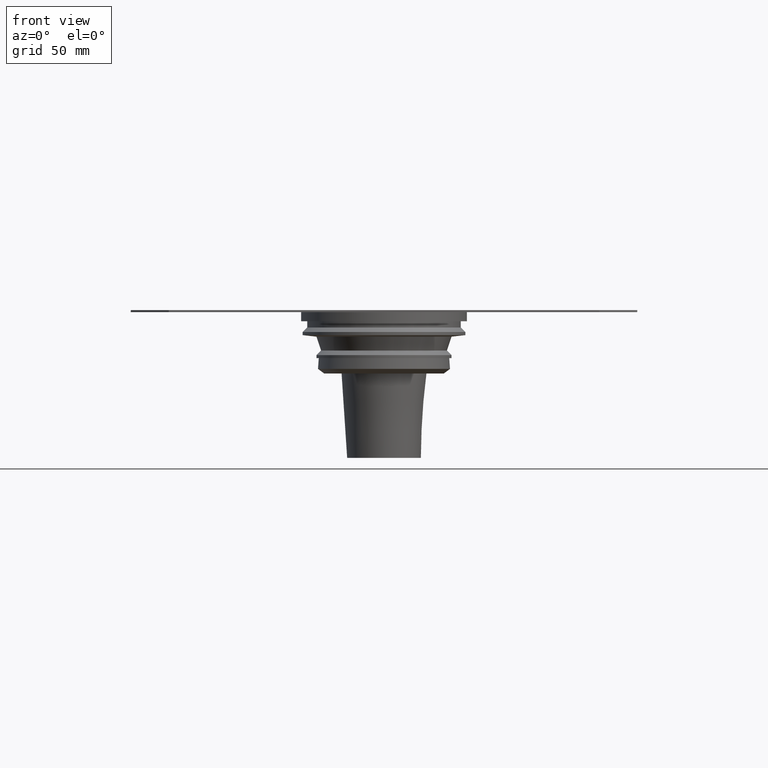
[diagram: clean part render]
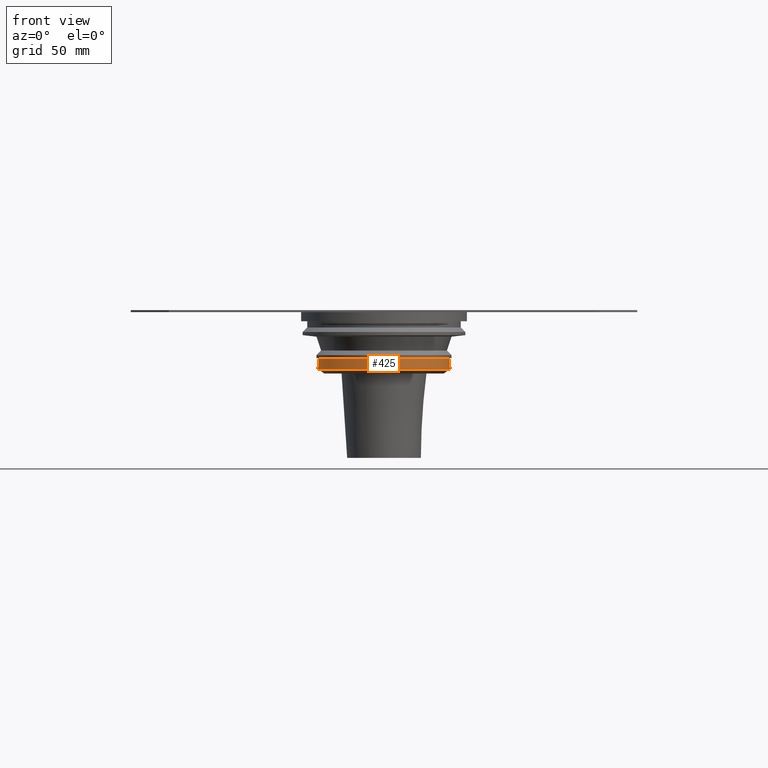
[diagram: same view with one face highlighted and labeled with its STEP entity id]
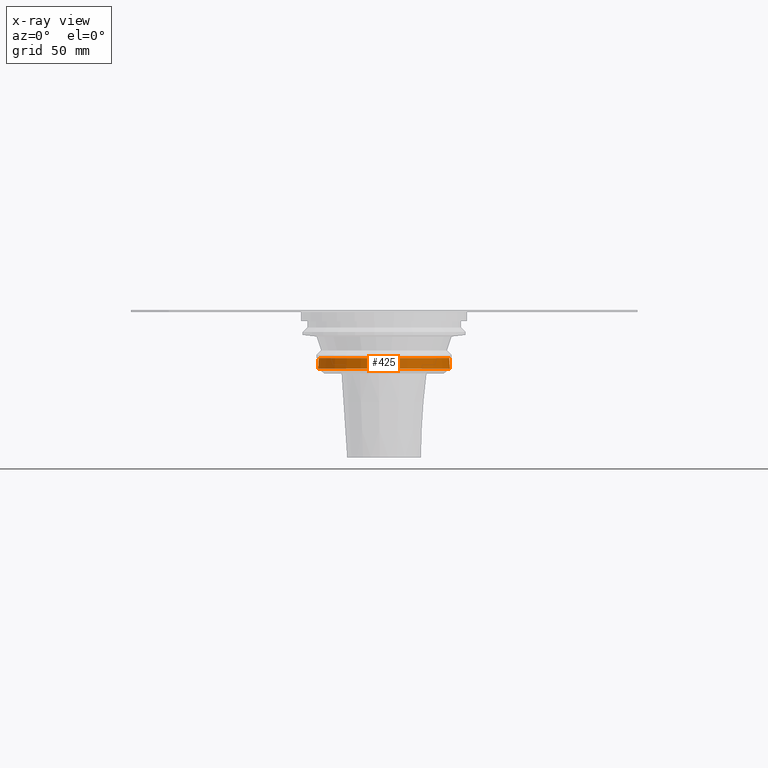
[diagram: x-ray of the same camera — body ghosted, the highlighted face saturated]
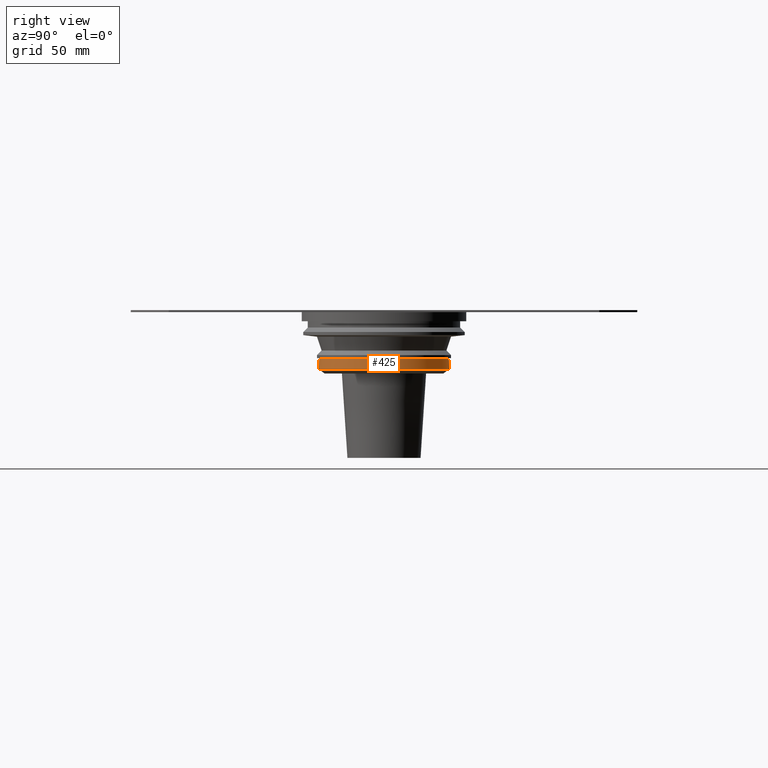
[diagram: same view with one face highlighted and labeled with its STEP entity id]
A machine part, front view. The second image highlights one B-rep face of the part: STEP entity #425.
The next image is the same camera in x-ray: the body ghosted, the highlighted face saturated — about 0% of this face is hidden behind the body in this view.
A second angle (right view) of the same face is appended — the face is thin or edge-on in the first view.
In plain terms, the highlighted conical surface has half-angle 4.086 deg.
Its self-contained STEP definition (entity closure, byte-faithful):
#25=CONICAL_SURFACE('',#483,43.,0.0713074647852903);
#43=CIRCLE('',#482,43.);
#44=CIRCLE('',#484,42.5);
#113=ORIENTED_EDGE('',*,*,#187,.T.);
#114=ORIENTED_EDGE('',*,*,#186,.F.);
#186=EDGE_CURVE('',#224,#224,#43,.T.);
#187=EDGE_CURVE('',#225,#225,#44,.T.);
#224=VERTEX_POINT('',#722);
#225=VERTEX_POINT('',#725);
#313=EDGE_LOOP('',(#113));
#314=EDGE_LOOP('',(#114));
#367=FACE_BOUND('',#313,.T.);
#368=FACE_BOUND('',#314,.T.);
#425=ADVANCED_FACE('',(#367,#368),#25,.T.);
#482=AXIS2_PLACEMENT_3D('',#721,#594,#595);
#483=AXIS2_PLACEMENT_3D('',#723,#596,#597);
#484=AXIS2_PLACEMENT_3D('',#724,#598,#599);
#594=DIRECTION('',(0.,0.,-1.));
#595=DIRECTION('',(-1.,0.,0.));
#596=DIRECTION('',(0.,0.,-1.));
#597=DIRECTION('',(-1.,0.,0.));
#598=DIRECTION('',(0.,0.,-1.));
#599=DIRECTION('',(-1.,0.,0.));
#721=CARTESIAN_POINT('',(0.,0.,-37.));
#722=CARTESIAN_POINT('',(-43.,0.,-37.));
#723=CARTESIAN_POINT('',(0.,0.,-37.));
#724=CARTESIAN_POINT('',(0.,0.,-30.));
#725=CARTESIAN_POINT('',(-42.5,0.,-30.));